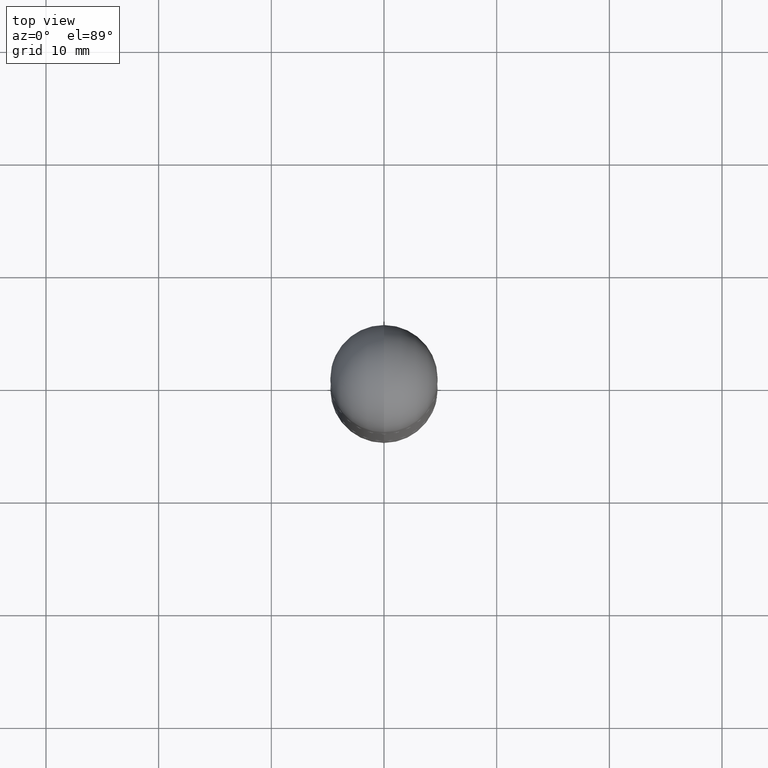
[diagram: clean part render]
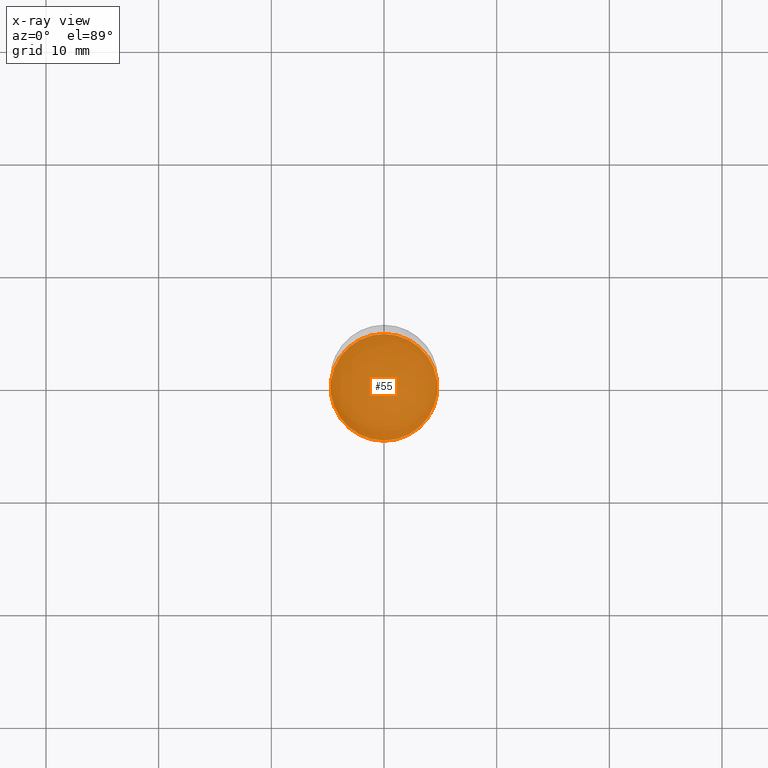
[diagram: x-ray — body ghosted, one internal face saturated and labeled with its STEP entity id]
A machine part, top view, then the same camera in x-ray: the body is ghosted and one INTERNAL B-rep face — a face not visible from any outside direction — is saturated and labeled: STEP entity #55.
In plain terms, the highlighted planar face has unit normal (-0, 0, 1).
Its self-contained STEP definition (entity closure, byte-faithful):
#29 = VERTEX_POINT ( 'NONE', #515 ) ;
#55 = ADVANCED_FACE ( 'NONE', ( #385 ), #585, .F. ) ;
#71 = CIRCLE ( 'NONE', #291, 0.1864999999999999714 ) ;
#170 = ORIENTED_EDGE ( 'NONE', *, *, #283, .F. ) ;
#179 = CARTESIAN_POINT ( 'NONE',  ( 4.740610616743479654E-29, -6.764640516387164684E-15, -1.937999999999999945 ) ) ;
#183 = DIRECTION ( 'NONE',  ( -2.446135509155562374E-29, 3.490526582243119048E-15, 1.000000000000000000 ) ) ;
#212 = CARTESIAN_POINT ( 'NONE',  ( 4.740610616743479654E-29, -6.764640516387164684E-15, -1.937999999999999945 ) ) ;
#257 = CARTESIAN_POINT ( 'NONE',  ( 4.740610616743479654E-29, -6.764640516387164684E-15, -1.937999999999999945 ) ) ;
#283 = EDGE_CURVE ( 'NONE', #29, #658, #71, .T. ) ;
#291 = AXIS2_PLACEMENT_3D ( 'NONE', #179, #183, #430 ) ;
#335 = DIRECTION ( 'NONE',  ( -6.982962677686265922E-15, -1.000000000000000000, 3.490526582243119048E-15 ) ) ;
#385 = FACE_OUTER_BOUND ( 'NONE', #419, .T. ) ;
#401 = EDGE_CURVE ( 'NONE', #658, #29, #802, .T. ) ;
#419 = EDGE_LOOP ( 'NONE', ( #604, #170 ) ) ;
#430 = DIRECTION ( 'NONE',  ( -6.982962677686265922E-15, -1.000000000000000000, 2.929595703661408850E-15 ) ) ;
#443 = DIRECTION ( 'NONE',  ( -2.446135509155562374E-29, 3.490526582243119048E-15, 1.000000000000000000 ) ) ;
#457 = AXIS2_PLACEMENT_3D ( 'NONE', #257, #443, #569 ) ;
#515 = CARTESIAN_POINT ( 'NONE',  ( 1.328714915871435071E-15, 0.1864999999999932268, -1.938000000000000389 ) ) ;
#569 = DIRECTION ( 'NONE',  ( -6.982962677686265922E-15, -1.000000000000000000, 2.929595703661408850E-15 ) ) ;
#580 = DIRECTION ( 'NONE',  ( -2.446135509155562374E-29, 3.490526582243119048E-15, 1.000000000000000000 ) ) ;
#585 = PLANE ( 'NONE',  #600 ) ;
#600 = AXIS2_PLACEMENT_3D ( 'NONE', #212, #580, #335 ) ;
#604 = ORIENTED_EDGE ( 'NONE', *, *, #401, .F. ) ;
#658 = VERTEX_POINT ( 'NONE', #755 ) ;
#755 = CARTESIAN_POINT ( 'NONE',  ( -1.302322539388441071E-15, -0.1865000000000067437, -1.937999999999999279 ) ) ;
#802 = CIRCLE ( 'NONE', #457, 0.1864999999999999714 ) ;